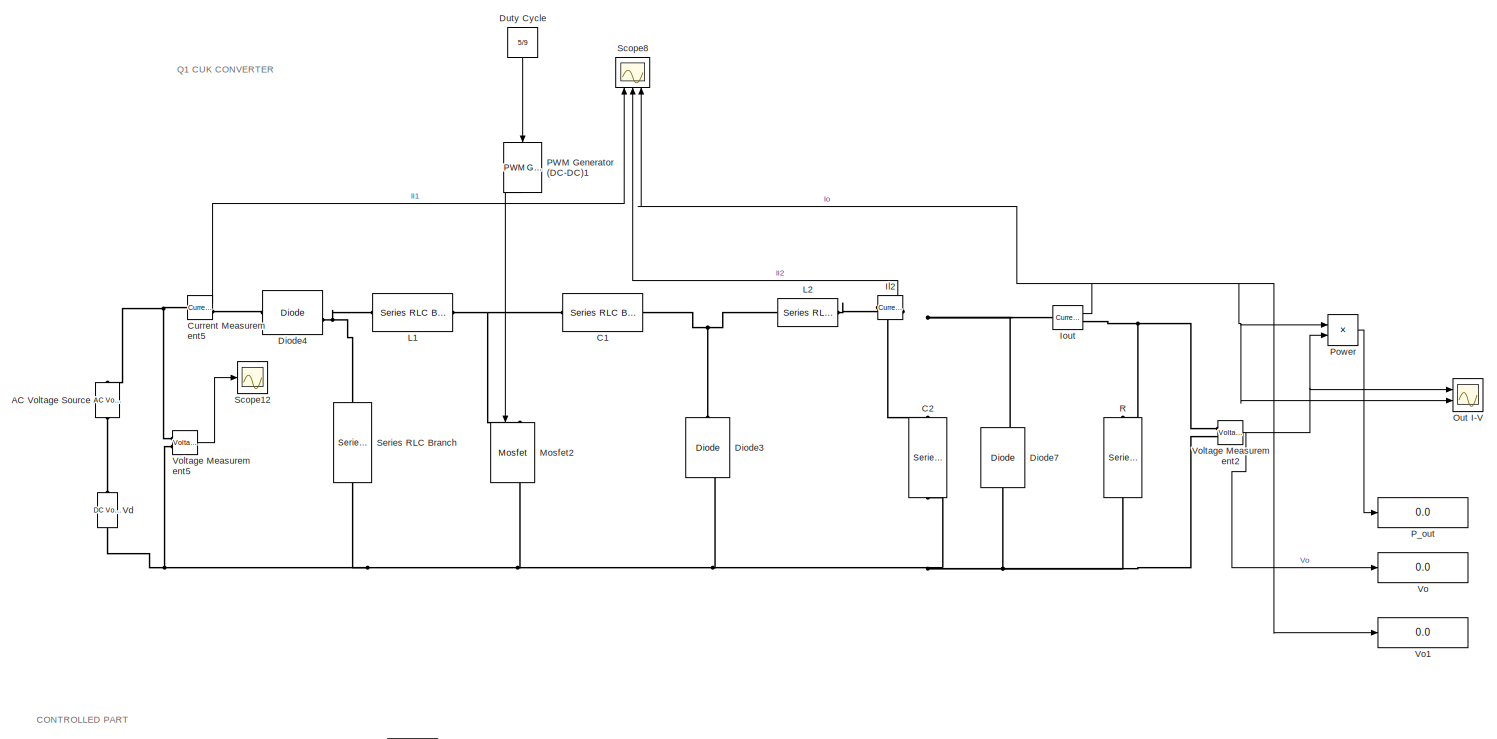
[diagram: root canvas - part 1/3, full width, top band]
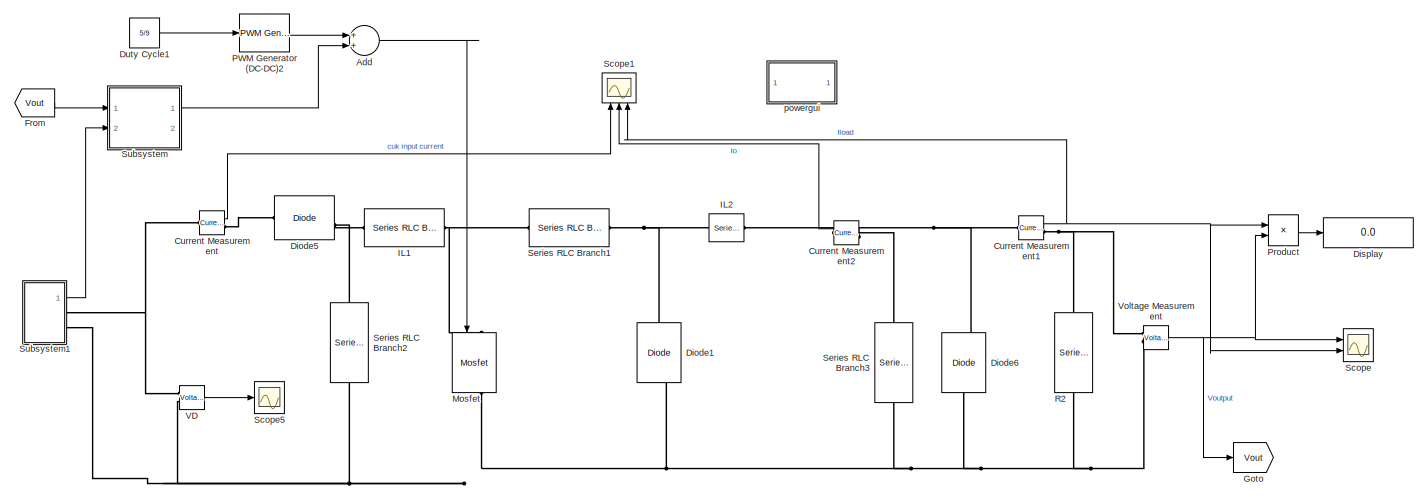
[diagram: root canvas - part 2/3, full width, middle band]
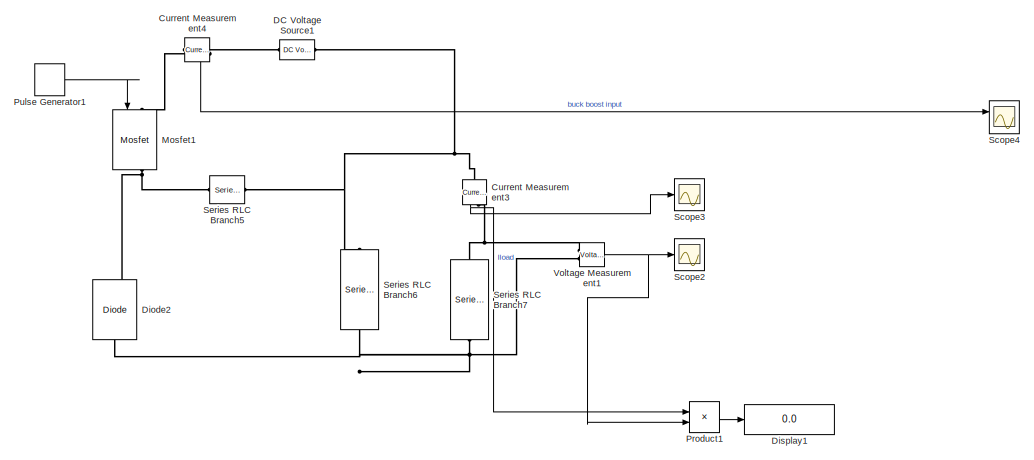
[diagram: root canvas - part 3/3, bottom right region]
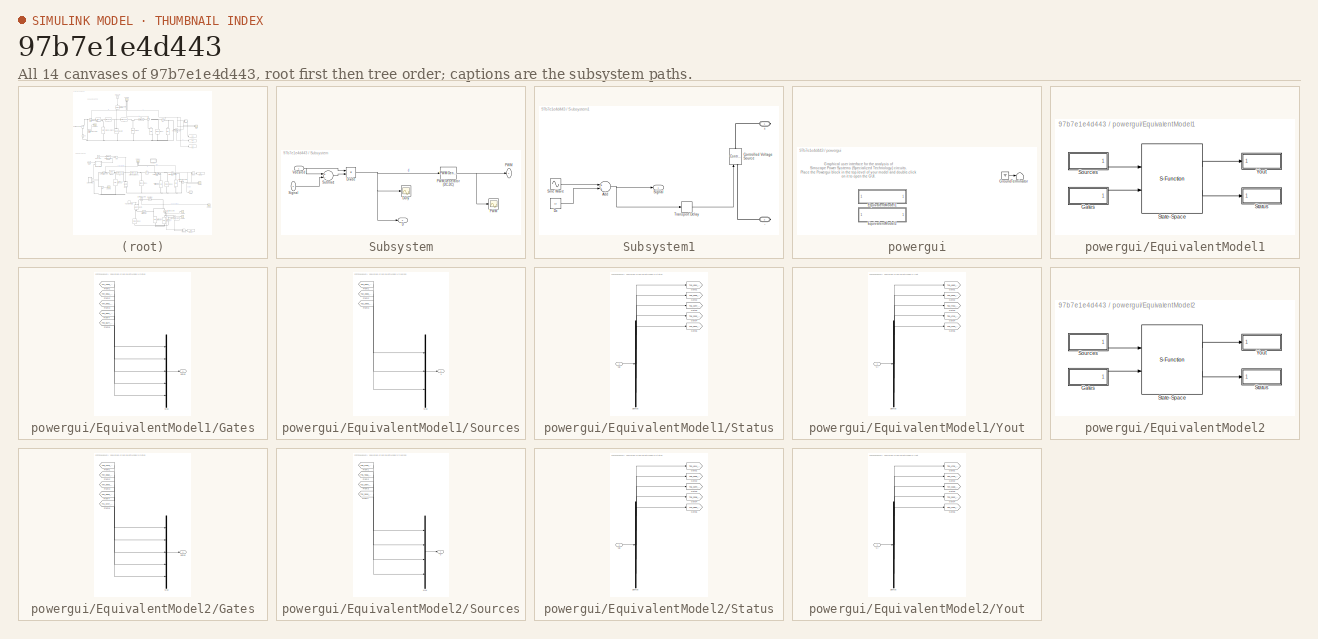
[diagram: thumbnail index - all 14 canvases of the model, root first then tree order]
MODEL slx_97b7e1e4d443
KIND model
CONFIG AbsTol = auto
CONFIG FixedStep = auto
CONFIG MaxStep = 1e-4
CONFIG MinStep = auto
CONFIG RelTol = 1e-3
CONFIG SampleTimeConstraint = Unconstrained
CONFIG Solver = VariableStepAuto
CONFIG SolverMode = Auto
CONFIG SolverName = VariableStepAuto
CONFIG StartTime = 0.0
CONFIG StopTime = 0.05
BLOCK [Reference] AC Voltage Source  REF=powerlib/Electrical
Sources/AC Voltage Source
  Ports = [0, 0, 0, 0, 0, 1, 1]
  SourceBlock = powerlib/Electrical\nSources/AC Voltage Source
  SourceType = AC Voltage Source
BLOCK [Sum] Add
  InputSameDT = off
  OutDataTypeStr = Inherit: Inherit via internal rule
  Ports = [2, 1]
  SaturateOnIntegerOverflow = off
BLOCK [Reference] C1  REF=powerlib/Elements/Series RLC Branch
  Ports = [0, 0, 0, 0, 0, 1, 1]
  SourceBlock = powerlib/Elements/Series RLC Branch
  SourceType = Series RLC Branch
BLOCK [Reference] C2  REF=powerlib/Elements/Series RLC Branch
  Ports = [0, 0, 0, 0, 0, 1, 1]
  SourceBlock = powerlib/Elements/Series RLC Branch
  SourceType = Series RLC Branch
BLOCK [Reference] Current Measurement  REF=powerlib/Measurements/Current Measurement
  Ports = [0, 1, 0, 0, 0, 1, 1]
  SourceBlock = powerlib/Measurements/Current Measurement
  SourceType = Current Measurement
  UserDataPersistent = on
BLOCK [Reference] Current Measurement1  REF=powerlib/Measurements/Current Measurement
  Ports = [0, 1, 0, 0, 0, 1, 1]
  SourceBlock = powerlib/Measurements/Current Measurement
  SourceType = Current Measurement
  UserDataPersistent = on
BLOCK [Reference] Current Measurement2  REF=powerlib/Measurements/Current Measurement
  Ports = [0, 1, 0, 0, 0, 1, 1]
  SourceBlock = powerlib/Measurements/Current Measurement
  SourceType = Current Measurement
  UserDataPersistent = on
BLOCK [Reference] Current Measurement3  REF=powerlib/Measurements/Current Measurement
  Commented = on
  Ports = [0, 1, 0, 0, 0, 1, 1]
  SourceBlock = powerlib/Measurements/Current Measurement
  SourceType = Current Measurement
  UserDataPersistent = on
BLOCK [Reference] Current Measurement4  REF=powerlib/Measurements/Current Measurement
  Commented = on
  Ports = [0, 1, 0, 0, 0, 1, 1]
  SourceBlock = powerlib/Measurements/Current Measurement
  SourceType = Current Measurement
  UserDataPersistent = on
BLOCK [Reference] Current Measurement5  REF=powerlib/Measurements/Current Measurement
  Ports = [0, 1, 0, 0, 0, 1, 1]
  SourceBlock = powerlib/Measurements/Current Measurement
  SourceType = Current Measurement
  UserDataPersistent = on
BLOCK [Reference] DC Voltage Source1  REF=powerlib/Electrical
Sources/DC Voltage Source
  Commented = on
  Ports = [0, 0, 0, 0, 0, 1, 1]
  SourceBlock = powerlib/Electrical\nSources/DC Voltage Source
  SourceType = DC Voltage Source
BLOCK [Reference] Diode1  REF=powerlib/Power
Electronics/Diode
  Ports = [0, 1, 0, 0, 0, 1, 1]
  SourceBlock = powerlib/Power\nElectronics/Diode
  SourceType = Diode
BLOCK [Reference] Diode2  REF=powerlib/Power
Electronics/Diode
  Commented = on
  Ports = [0, 1, 0, 0, 0, 1, 1]
  SourceBlock = powerlib/Power\nElectronics/Diode
  SourceType = Diode
BLOCK [Reference] Diode3  REF=powerlib/Power
Electronics/Diode
  Ports = [0, 1, 0, 0, 0, 1, 1]
  SourceBlock = powerlib/Power\nElectronics/Diode
  SourceType = Diode
BLOCK [Reference] Diode4  REF=powerlib/Power
Electronics/Diode
  Ports = [0, 1, 0, 0, 0, 1, 1]
  SourceBlock = powerlib/Power\nElectronics/Diode
  SourceType = Diode
BLOCK [Reference] Diode5  REF=powerlib/Power
Electronics/Diode
  Ports = [0, 1, 0, 0, 0, 1, 1]
  SourceBlock = powerlib/Power\nElectronics/Diode
  SourceType = Diode
BLOCK [Reference] Diode6  REF=powerlib/Power
Electronics/Diode
  Ports = [0, 1, 0, 0, 0, 1, 1]
  SourceBlock = powerlib/Power\nElectronics/Diode
  SourceType = Diode
BLOCK [Reference] Diode7  REF=powerlib/Power
Electronics/Diode
  Ports = [0, 1, 0, 0, 0, 1, 1]
  SourceBlock = powerlib/Power\nElectronics/Diode
  SourceType = Diode
BLOCK [Display] Display
  Decimation = 1
  Ports = [1]
BLOCK [Display] Display1
  Commented = on
  Decimation = 1
  Ports = [1]
BLOCK [Constant] Duty Cycle
  Value = 5/9
BLOCK [Constant] Duty Cycle1
  Value = 5/9
BLOCK [From] From
  GotoTag = Vout
BLOCK [Goto] Goto
  GotoTag = Vout
BLOCK [Reference] IL1  REF=powerlib/Elements/Series RLC Branch
  Ports = [0, 0, 0, 0, 0, 1, 1]
  SourceBlock = powerlib/Elements/Series RLC Branch
  SourceType = Series RLC Branch
BLOCK [Reference] IL2  REF=powerlib/Elements/Series RLC Branch
  Ports = [0, 0, 0, 0, 0, 1, 1]
  SourceBlock = powerlib/Elements/Series RLC Branch
  SourceType = Series RLC Branch
BLOCK [Reference] Il2  REF=powerlib/Measurements/Current Measurement
  Ports = [0, 1, 0, 0, 0, 1, 1]
  SourceBlock = powerlib/Measurements/Current Measurement
  SourceType = Current Measurement
  UserDataPersistent = on
BLOCK [Reference] Iout  REF=powerlib/Measurements/Current Measurement
  Ports = [0, 1, 0, 0, 0, 1, 1]
  SourceBlock = powerlib/Measurements/Current Measurement
  SourceType = Current Measurement
  UserDataPersistent = on
BLOCK [Reference] L1  REF=powerlib/Elements/Series RLC Branch
  Ports = [0, 0, 0, 0, 0, 1, 1]
  SourceBlock = powerlib/Elements/Series RLC Branch
  SourceType = Series RLC Branch
BLOCK [Reference] L2  REF=powerlib/Elements/Series RLC Branch
  Ports = [0, 0, 0, 0, 0, 1, 1]
  SourceBlock = powerlib/Elements/Series RLC Branch
  SourceType = Series RLC Branch
BLOCK [Reference] Mosfet  REF=powerlib/Power
Electronics/Mosfet
  Ports = [1, 1, 0, 0, 0, 1, 1]
  SourceBlock = powerlib/Power\nElectronics/Mosfet
  SourceType = Mosfet
BLOCK [Reference] Mosfet1  REF=powerlib/Power
Electronics/Mosfet
  Commented = on
  Ports = [1, 1, 0, 0, 0, 1, 1]
  SourceBlock = powerlib/Power\nElectronics/Mosfet
  SourceType = Mosfet
BLOCK [Reference] Mosfet2  REF=powerlib/Power
Electronics/Mosfet
  Ports = [1, 1, 0, 0, 0, 1, 1]
  SourceBlock = powerlib/Power\nElectronics/Mosfet
  SourceType = Mosfet
BLOCK [Scope] Out I-V
  NumInputPorts = 2
  Ports = [2]
  ScopeSpecificationString = Simulink.scopes.TimeScopeBlockCfg('CurrentConfiguration', extmgr.ConfigurationSet(extmgr.Configuration('Core','General UI',true,'FigureColor',[1 1 1]),extmgr.Configuration('Core','Source UI',true),extmgr.Configuration('Sources','WiredSimulink',true,'DataLoggingVariableName','ScopeData11'),extmgr.Configuration('Visuals','Time Domain',true,'SerializedDisplays',{struct('MinYLimReal','-16.88543','MaxY...<+2687ch>
BLOCK [Reference] PWM Generator (DC-DC)1  REF=powerlib_meascontrol/Pulse & Signal
Generators/PWM Generator
(DC-DC)
  Ports = [1, 1]
  SourceBlock = powerlib_meascontrol/Pulse & Signal\nGenerators/PWM Generator\n(DC-DC)
  SourceType = PWM Generator (DC-DC)
BLOCK [Reference] PWM Generator (DC-DC)2  REF=powerlib_meascontrol/Pulse & Signal
Generators/PWM Generator
(DC-DC)
  Ports = [1, 1]
  SourceBlock = powerlib_meascontrol/Pulse & Signal\nGenerators/PWM Generator\n(DC-DC)
  SourceType = PWM Generator (DC-DC)
BLOCK [Display] P_out
  Decimation = 1
  Ports = [1]
BLOCK [Product] Power
  InputSameDT = off
  OutDataTypeStr = Inherit: Inherit via internal rule
  Ports = [2, 1]
  RndMeth = Floor
  SaturateOnIntegerOverflow = off
BLOCK [Product] Product
  InputSameDT = off
  OutDataTypeStr = Inherit: Inherit via internal rule
  Ports = [2, 1]
  RndMeth = Floor
  SaturateOnIntegerOverflow = off
BLOCK [Product] Product1
  Commented = on
  InputSameDT = off
  OutDataTypeStr = Inherit: Inherit via internal rule
  Ports = [2, 1]
  RndMeth = Floor
  SaturateOnIntegerOverflow = off
BLOCK [DiscretePulseGenerator] Pulse Generator1
  Commented = on
  Period = 1/(150e3)
  Ports = [0, 1]
  PulseType = Time based
  PulseWidth = 5/9*100
BLOCK [Reference] R  REF=powerlib/Elements/Series RLC Branch
  Ports = [0, 0, 0, 0, 0, 1, 1]
  SourceBlock = powerlib/Elements/Series RLC Branch
  SourceType = Series RLC Branch
BLOCK [Reference] R2  REF=powerlib/Elements/Series RLC Branch
  Ports = [0, 0, 0, 0, 0, 1, 1]
  SourceBlock = powerlib/Elements/Series RLC Branch
  SourceType = Series RLC Branch
BLOCK [Scope] Scope
  NumInputPorts = 2
  Ports = [2]
  ScopeSpecificationString = Simulink.scopes.TimeScopeBlockCfg('CurrentConfiguration', extmgr.ConfigurationSet(extmgr.Configuration('Core','General UI',true,'FigureColor',[1 1 1]),extmgr.Configuration('Core','Source UI',true),extmgr.Configuration('Sources','WiredSimulink',true),extmgr.Configuration('Visuals','Time Domain',true,'SerializedDisplays',{struct('MinYLimReal','-20.83525','MaxYLimReal','30.09281','YLabelReal','','Min...<+2313ch>
BLOCK [Scope] Scope1
  NumInputPorts = 3
  Ports = [3]
  ScopeSpecificationString = Simulink.scopes.TimeScopeBlockCfg('CurrentConfiguration', extmgr.ConfigurationSet(extmgr.Configuration('Core','General UI',true,'FigureColor',[1 1 1]),extmgr.Configuration('Core','Source UI',true),extmgr.Configuration('Sources','WiredSimulink',true,'DataLoggingVariableName','ScopeData1'),extmgr.Configuration('Visuals','Time Domain',true,'SerializedDisplays',{struct('MinYLimReal','1.38229','MaxYLim...<+3197ch>
BLOCK [Scope] Scope12
  NumInputPorts = 1
  Ports = [1]
  ScopeSpecificationString = Simulink.scopes.TimeScopeBlockCfg('CurrentConfiguration', extmgr.ConfigurationSet(extmgr.Configuration('Core','General UI',true),extmgr.Configuration('Core','Source UI',true),extmgr.Configuration('Sources','WiredSimulink',true,'DataLoggingVariableName','ScopeData9'),extmgr.Configuration('Visuals','Time Domain',true,'SerializedDisplays',{struct('MinYLimReal','9.8673','MaxYLimReal','14.09321','YLabe...<+1422ch>
BLOCK [Scope] Scope2
  Commented = on
  NumInputPorts = 1
  Ports = [1]
  ScopeSpecificationString = Simulink.scopes.TimeScopeBlockCfg('CurrentConfiguration', extmgr.ConfigurationSet(extmgr.Configuration('Core','General UI',true),extmgr.Configuration('Core','Source UI',true),extmgr.Configuration('Sources','WiredSimulink',true,'DataLoggingVariableName','ScopeData2'),extmgr.Configuration('Visuals','Time Domain',true,'SerializedDisplays',{struct('MinYLimReal','13.4697','MaxYLimReal','14.1803','YLabe...<+1422ch>
BLOCK [Scope] Scope3
  Commented = on
  NumInputPorts = 1
  Ports = [1]
  ScopeSpecificationString = Simulink.scopes.TimeScopeBlockCfg('CurrentConfiguration', extmgr.ConfigurationSet(extmgr.Configuration('Core','General UI',true),extmgr.Configuration('Core','Source UI',true),extmgr.Configuration('Sources','WiredSimulink',true,'DataLoggingVariableName','ScopeData3'),extmgr.Configuration('Visuals','Time Domain',true,'SerializedDisplays',{struct('MinYLimReal','4.39076','MaxYLimReal','4.75562','YLabe...<+2073ch>
BLOCK [Scope] Scope4
  Commented = on
  NumInputPorts = 2
  Ports = [2]
  ScopeSpecificationString = Simulink.scopes.TimeScopeBlockCfg('CurrentConfiguration', extmgr.ConfigurationSet(extmgr.Configuration('Core','General UI',true,'FigureColor',[1 1 1]),extmgr.Configuration('Core','Source UI',true),extmgr.Configuration('Sources','WiredSimulink',true,'DataLoggingVariableName','ScopeData4'),extmgr.Configuration('Visuals','Time Domain',true,'SerializedDisplays',{struct('MinYLimReal','-1.42461','MaxYLi...<+2316ch>
BLOCK [Scope] Scope5
  NumInputPorts = 1
  Ports = [1]
  ScopeSpecificationString = Simulink.scopes.TimeScopeBlockCfg('CurrentConfiguration', extmgr.ConfigurationSet(extmgr.Configuration('Core','General UI',true),extmgr.Configuration('Core','Source UI',true),extmgr.Configuration('Sources','WiredSimulink',true,'DataLoggingVariableName','ScopeData5'),extmgr.Configuration('Visuals','Time Domain',true,'SerializedDisplays',{struct('MinYLimReal','9.8673','MaxYLimReal','14.09321','YLabe...<+1404ch>
BLOCK [Scope] Scope8
  NumInputPorts = 3
  Ports = [3]
  ScopeSpecificationString = Simulink.scopes.TimeScopeBlockCfg('CurrentConfiguration', extmgr.ConfigurationSet(extmgr.Configuration('Core','General UI',true,'FigureColor',[1 1 1]),extmgr.Configuration('Core','Source UI',true),extmgr.Configuration('Sources','WiredSimulink',true,'DataLoggingVariableName','ScopeData12'),extmgr.Configuration('Visuals','Time Domain',true,'SerializedDisplays',{struct('MinYLimReal','-0.28734','MaxYL...<+3176ch>
BLOCK [Reference] Series RLC Branch  REF=powerlib/Elements/Series RLC Branch
  Ports = [0, 0, 0, 0, 0, 1, 1]
  SourceBlock = powerlib/Elements/Series RLC Branch
  SourceType = Series RLC Branch
BLOCK [Reference] Series RLC Branch1  REF=powerlib/Elements/Series RLC Branch
  Ports = [0, 0, 0, 0, 0, 1, 1]
  SourceBlock = powerlib/Elements/Series RLC Branch
  SourceType = Series RLC Branch
BLOCK [Reference] Series RLC Branch2  REF=powerlib/Elements/Series RLC Branch
  Ports = [0, 0, 0, 0, 0, 1, 1]
  SourceBlock = powerlib/Elements/Series RLC Branch
  SourceType = Series RLC Branch
BLOCK [Reference] Series RLC Branch3  REF=powerlib/Elements/Series RLC Branch
  Ports = [0, 0, 0, 0, 0, 1, 1]
  SourceBlock = powerlib/Elements/Series RLC Branch
  SourceType = Series RLC Branch
BLOCK [Reference] Series RLC Branch5  REF=powerlib/Elements/Series RLC Branch
  Commented = on
  Ports = [0, 0, 0, 0, 0, 1, 1]
  SourceBlock = powerlib/Elements/Series RLC Branch
  SourceType = Series RLC Branch
BLOCK [Reference] Series RLC Branch6  REF=powerlib/Elements/Series RLC Branch
  Commented = on
  Ports = [0, 0, 0, 0, 0, 1, 1]
  SourceBlock = powerlib/Elements/Series RLC Branch
  SourceType = Series RLC Branch
BLOCK [Reference] Series RLC Branch7  REF=powerlib/Elements/Series RLC Branch
  Commented = on
  Ports = [0, 0, 0, 0, 0, 1, 1]
  SourceBlock = powerlib/Elements/Series RLC Branch
  SourceType = Series RLC Branch
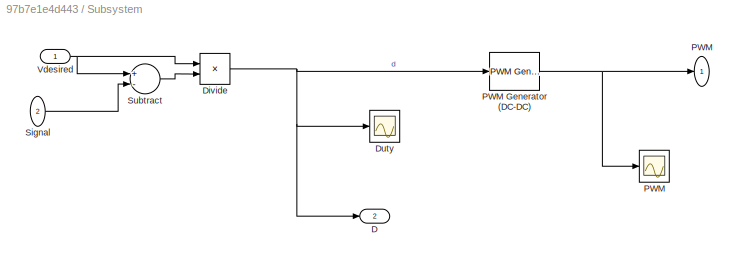
BLOCK [SubSystem] Subsystem
  Ports = [2, 2]
  RequestExecContextInheritance = off
  Variant = off
BLOCK [Outport] Subsystem/D
  IconDisplay = Port number
  Port = 2
BLOCK [Product] Subsystem/Divide
  InputSameDT = off
  Inputs = */
  OutDataTypeStr = Inherit: Inherit via internal rule
  Ports = [2, 1]
  RndMeth = Floor
  SaturateOnIntegerOverflow = off
BLOCK [Scope] Subsystem/Duty
  NumInputPorts = 1
  Ports = [1]
  ScopeSpecificationString = Simulink.scopes.TimeScopeBlockCfg('CurrentConfiguration', extmgr.ConfigurationSet(extmgr.Configuration('Core','General UI',true),extmgr.Configuration('Core','Source UI',true),extmgr.Configuration('Sources','WiredSimulink',true,'DataLoggingVariableName','ScopeData6'),extmgr.Configuration('Visuals','Time Domain',true,'SerializedDisplays',{struct('MinYLimReal','-0.99349','MaxYLimReal','-0.9107','YLab...<+1430ch>
BLOCK [Outport] Subsystem/PWM
  IconDisplay = Port number
BLOCK [Scope] Subsystem/PWM 
  NumInputPorts = 1
  Ports = [1]
  ScopeSpecificationString = Simulink.scopes.TimeScopeBlockCfg('CurrentConfiguration', extmgr.ConfigurationSet(extmgr.Configuration('Core','General UI',true),extmgr.Configuration('Core','Source UI',true),extmgr.Configuration('Sources','WiredSimulink',true,'DataLoggingVariableName','ScopeData2'),extmgr.Configuration('Visuals','Time Domain',true,'SerializedDisplays',{struct('MinYLimReal','0.5069','MaxYLimReal','0.61034','YLabel...<+1444ch>
BLOCK [Reference] Subsystem/PWM Generator (DC-DC)  REF=powerlib_meascontrol/Pulse & Signal
Generators/PWM Generator
(DC-DC)
  Ports = [1, 1]
  SourceBlock = powerlib_meascontrol/Pulse & Signal\nGenerators/PWM Generator\n(DC-DC)
  SourceType = PWM Generator (DC-DC)
BLOCK [Inport] Subsystem/Signal
  IconDisplay = Port number
  Port = 2
BLOCK [Sum] Subsystem/Subtract 
  InputSameDT = off
  Inputs = +-
  OutDataTypeStr = Inherit: Inherit via internal rule
  Ports = [2, 1]
  SaturateOnIntegerOverflow = off
BLOCK [Inport] Subsystem/Vdesired
  IconDisplay = Port number
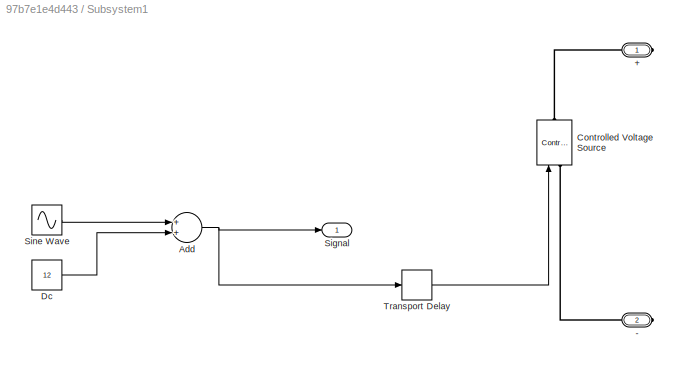
BLOCK [SubSystem] Subsystem1
  Ports = [0, 1, 0, 0, 0, 0, 2]
  RequestExecContextInheritance = off
  Variant = off
BLOCK [PMIOPort] Subsystem1/+
  Port = 1
  Side = Right
BLOCK [PMIOPort] Subsystem1/-
  Port = 2
  Side = Right
BLOCK [Sum] Subsystem1/Add
  InputSameDT = off
  OutDataTypeStr = Inherit: Inherit via internal rule
  Ports = [2, 1]
  SaturateOnIntegerOverflow = off
BLOCK [Reference] Subsystem1/Controlled Voltage Source  REF=powerlib/Electrical
Sources/Controlled Voltage Source
  Ports = [1, 0, 0, 0, 0, 1, 1]
  SourceBlock = powerlib/Electrical\nSources/Controlled Voltage Source
  SourceType = Controlled Voltage Source
BLOCK [Constant] Subsystem1/Dc
  Value = 12
BLOCK [Outport] Subsystem1/Signal
  IconDisplay = Port number
BLOCK [Sin] Subsystem1/Sine Wave
  Amplitude = 2
  Frequency = 600*pi
  Ports = [0, 1]
  SampleTime = 0
BLOCK [TransportDelay] Subsystem1/Transport Delay
  DelayTime = 2e-4
  Ports = [1, 1]
BLOCK [Reference] VD  REF=powerlib/Measurements/Voltage Measurement
  Ports = [0, 1, 0, 0, 0, 2]
  SourceBlock = powerlib/Measurements/Voltage Measurement
  SourceType = Voltage Measurement
  UserDataPersistent = on
BLOCK [Reference] Vd  REF=powerlib/Electrical
Sources/DC Voltage Source
  Ports = [0, 0, 0, 0, 0, 1, 1]
  SourceBlock = powerlib/Electrical\nSources/DC Voltage Source
  SourceType = DC Voltage Source
BLOCK [Display] Vo
  Decimation = 1
  Ports = [1]
BLOCK [Display] Vo1
  Decimation = 1
  Ports = [1]
BLOCK [Reference] Voltage Measurement  REF=powerlib/Measurements/Voltage Measurement
  Ports = [0, 1, 0, 0, 0, 2]
  SourceBlock = powerlib/Measurements/Voltage Measurement
  SourceType = Voltage Measurement
  UserDataPersistent = on
BLOCK [Reference] Voltage Measurement1  REF=powerlib/Measurements/Voltage Measurement
  Commented = on
  Ports = [0, 1, 0, 0, 0, 2]
  SourceBlock = powerlib/Measurements/Voltage Measurement
  SourceType = Voltage Measurement
  UserDataPersistent = on
BLOCK [Reference] Voltage Measurement2  REF=powerlib/Measurements/Voltage Measurement
  Ports = [0, 1, 0, 0, 0, 2]
  SourceBlock = powerlib/Measurements/Voltage Measurement
  SourceType = Voltage Measurement
  UserDataPersistent = on
BLOCK [Reference] Voltage Measurement5  REF=powerlib/Measurements/Voltage Measurement
  Ports = [0, 1, 0, 0, 0, 2]
  SourceBlock = powerlib/Measurements/Voltage Measurement
  SourceType = Voltage Measurement
  UserDataPersistent = on
BLOCK [SubSystem] powergui
  AncestorBlock = powerlib/powergui
  DialogController = POWERSYS.PowerSysDialog
  InitFcn = powergui( 'InitFcn_Callback' , gcb , 0 , [ ] );
  OpenFcn = sps_rtmsupport('OpenFcn',gcbh)
  Ports = []
  PreSaveFcn = powergui( 'PreSaveFcn_Callback' , gcb , [ ] , [ ] );
  Priority = 1
  RequestExecContextInheritance = off
  Variant = off
BLOCK [SubSystem] powergui/EquivalentModel1
  Ports = []
  RequestExecContextInheritance = off
  Variant = off
BLOCK [SubSystem] powergui/EquivalentModel1/Gates
  Ports = [0, 1]
  RequestExecContextInheritance = off
  Variant = off
BLOCK [From] powergui/EquivalentModel1/Gates/From1
  GotoTag = T47_4329_3698698910814
  TagVisibility = global
BLOCK [From] powergui/EquivalentModel1/Gates/From2
  GotoTag = T34_3061_1706458673654
  TagVisibility = global
BLOCK [From] powergui/EquivalentModel1/Gates/From3
  GotoTag = T34_3062_1706519013654
  TagVisibility = global
BLOCK [From] powergui/EquivalentModel1/Gates/From4
  GotoTag = T34_3057_1707040113654
  TagVisibility = global
BLOCK [From] powergui/EquivalentModel1/Gates/From5
  GotoTag = T40_3677_2581308517942
  TagVisibility = global
BLOCK [Mux] powergui/EquivalentModel1/Gates/Mux
  DisplayOption = bar
  Inputs = [1 1 1 1 1]
  Ports = [5, 1]
BLOCK [Outport] powergui/EquivalentModel1/Gates/gates
  IconDisplay = Port number
BLOCK [SubSystem] powergui/EquivalentModel1/Sources
  Ports = [0, 1]
  RequestExecContextInheritance = off
  Variant = off
BLOCK [From] powergui/EquivalentModel1/Sources/From1
  GotoTag = T64_6051_6956320666109
  TagVisibility = global
BLOCK [From] powergui/EquivalentModel1/Sources/From2
  GotoTag = T32_2808_1064889455766
  TagVisibility = global
BLOCK [From] powergui/EquivalentModel1/Sources/From3
  GotoTag = T32_2809_1065478437903
  TagVisibility = global
BLOCK [Mux] powergui/EquivalentModel1/Sources/Mux
  DisplayOption = bar
  Inputs = [1 1 1]
  Ports = [3, 1]
BLOCK [Outport] powergui/EquivalentModel1/Sources/u
  IconDisplay = Port number
BLOCK [S-Function] powergui/EquivalentModel1/State-Space
  EnableBusSupport = off
  FunctionName = sfun_spid_contc
  Parameters = S.Mg, [S.nb.x S.nb.u S.nb.y S.nb.s], S.x0, S.MgColNames, S.SwitchVf, S.SwitchType, S.SwitchGateInitialValue, S.SwitchTolerance,S.SaveMatrices,S.BufferSize
  Ports = [2, 2]
  SFunctionDeploymentMode = off
BLOCK [SubSystem] powergui/EquivalentModel1/Status
  Ports = [1]
  RequestExecContextInheritance = off
  Variant = off
BLOCK [Demux] powergui/EquivalentModel1/Status/Demux
  DisplayOption = bar
  Outputs = [2 2 2 2 2]
  Ports = [1, 5]
BLOCK [Goto] powergui/EquivalentModel1/Status/Goto1
  GotoTag = T49_4564_4305787090221
  TagVisibility = global
BLOCK [Goto] powergui/EquivalentModel1/Status/Goto2
  GotoTag = T36_3296_2193091115135
  TagVisibility = global
BLOCK [Goto] powergui/EquivalentModel1/Status/Goto3
  GotoTag = T36_3297_2192745277929
  TagVisibility = global
BLOCK [Goto] powergui/EquivalentModel1/Status/Goto4
  GotoTag = T36_3292_2195251552849
  TagVisibility = global
BLOCK [Goto] powergui/EquivalentModel1/Status/Goto5
  GotoTag = T42_3912_3109892010221
  TagVisibility = global
BLOCK [Inport] powergui/EquivalentModel1/Status/v&i
  IconDisplay = Port number
BLOCK [SubSystem] powergui/EquivalentModel1/Yout
  Ports = [1]
  RequestExecContextInheritance = off
  Variant = off
BLOCK [Demux] powergui/EquivalentModel1/Yout/Demux
  DisplayOption = bar
  Outputs = [1 1 1 1 1]
  Ports = [1, 5]
BLOCK [Goto] powergui/EquivalentModel1/Yout/Goto1
  GotoTag = T49_4683_4474323761173
  TagVisibility = global
BLOCK [Goto] powergui/EquivalentModel1/Yout/Goto2
  GotoTag = T32_2925_1634848418710
  TagVisibility = global
BLOCK [Goto] powergui/EquivalentModel1/Yout/Goto3
  GotoTag = T50_4750_4568249592167
  TagVisibility = global
BLOCK [Goto] powergui/EquivalentModel1/Yout/Goto4
  GotoTag = T50_4749_4569186554290
  TagVisibility = global
BLOCK [Goto] powergui/EquivalentModel1/Yout/Goto5
  GotoTag = T49_4700_4537125051531
  TagVisibility = global
BLOCK [Inport] powergui/EquivalentModel1/Yout/v,i
  IconDisplay = Port number
BLOCK [SubSystem] powergui/EquivalentModel2
  Ports = []
  RequestExecContextInheritance = off
  Variant = off
BLOCK [SubSystem] powergui/EquivalentModel2/Gates
  Ports = [0, 1]
  RequestExecContextInheritance = off
  Variant = off
BLOCK [From] powergui/EquivalentModel2/Gates/From1
  GotoTag = T48_4379_3837982568865
  TagVisibility = global
BLOCK [From] powergui/EquivalentModel2/Gates/From2
  GotoTag = T34_3060_1706480613654
  TagVisibility = global
BLOCK [From] powergui/EquivalentModel2/Gates/From3
  GotoTag = T34_3059_1706584833654
  TagVisibility = global
BLOCK [From] powergui/EquivalentModel2/Gates/From4
  GotoTag = T34_3063_1706661633654
  TagVisibility = global
BLOCK [From] powergui/EquivalentModel2/Gates/From5
  GotoTag = T41_3727_2658382082756
  TagVisibility = global
BLOCK [Mux] powergui/EquivalentModel2/Gates/Mux
  DisplayOption = bar
  Inputs = [1 1 1 1 1]
  Ports = [5, 1]
BLOCK [Outport] powergui/EquivalentModel2/Gates/gates
  IconDisplay = Port number
BLOCK [SubSystem] powergui/EquivalentModel2/Sources
  Ports = [0, 1]
  RequestExecContextInheritance = off
  Variant = off
BLOCK [From] powergui/EquivalentModel2/Sources/From1
  GotoTag = T30_2709_1288200906437
  TagVisibility = global
BLOCK [From] powergui/EquivalentModel2/Sources/From2
  GotoTag = T45_4066_3473095238283
  TagVisibility = global
BLOCK [From] powergui/EquivalentModel2/Sources/From3
  GotoTag = T32_2807_1064387896129
  TagVisibility = global
BLOCK [From] powergui/EquivalentModel2/Sources/From4
  GotoTag = T32_2810_1066154842540
  TagVisibility = global
BLOCK [Mux] powergui/EquivalentModel2/Sources/Mux
  DisplayOption = bar
  Inputs = [1 1 1 1]
  Ports = [4, 1]
BLOCK [Outport] powergui/EquivalentModel2/Sources/u
  IconDisplay = Port number
BLOCK [S-Function] powergui/EquivalentModel2/State-Space
  EnableBusSupport = off
  FunctionName = sfun_spid_contc
  Parameters = S.Mg, [S.nb.x S.nb.u S.nb.y S.nb.s], S.x0, S.MgColNames, S.SwitchVf, S.SwitchType, S.SwitchGateInitialValue, S.SwitchTolerance,S.SaveMatrices,S.BufferSize
  Ports = [2, 2]
  SFunctionDeploymentMode = off
BLOCK [SubSystem] powergui/EquivalentModel2/Status
  Ports = [1]
  RequestExecContextInheritance = off
  Variant = off
BLOCK [Demux] powergui/EquivalentModel2/Status/Demux
  DisplayOption = bar
  Outputs = [2 2 2 2 2]
  Ports = [1, 5]
BLOCK [Goto] powergui/EquivalentModel2/Status/Goto1
  GotoTag = T50_4614_4471141218486
  TagVisibility = global
BLOCK [Goto] powergui/EquivalentModel2/Status/Goto2
  GotoTag = T36_3295_2193514661230
  TagVisibility = global
BLOCK [Goto] powergui/EquivalentModel2/Status/Goto3
  GotoTag = T36_3294_2194015916214
  TagVisibility = global
BLOCK [Goto] powergui/EquivalentModel2/Status/Goto4
  GotoTag = T36_3298_2192477149611
  TagVisibility = global
BLOCK [Goto] powergui/EquivalentModel2/Status/Goto5
  GotoTag = T43_3962_3216961277254
  TagVisibility = global
BLOCK [Inport] powergui/EquivalentModel2/Status/v&i
  IconDisplay = Port number
BLOCK [SubSystem] powergui/EquivalentModel2/Yout
  Ports = [1]
  RequestExecContextInheritance = off
  Variant = off
BLOCK [Demux] powergui/EquivalentModel2/Yout/Demux
  DisplayOption = bar
  Outputs = [1 1 1 1 1]
  Ports = [1, 5]
BLOCK [Goto] powergui/EquivalentModel2/Yout/Goto1
  GotoTag = T50_4736_4505083443792
  TagVisibility = global
BLOCK [Goto] powergui/EquivalentModel2/Yout/Goto2
  GotoTag = T50_4733_4507053794322
  TagVisibility = global
BLOCK [Goto] powergui/EquivalentModel2/Yout/Goto3
  GotoTag = T34_3188_2066509576328
  TagVisibility = global
BLOCK [Goto] powergui/EquivalentModel2/Yout/Goto4
  GotoTag = T33_3002_1766650133201
  TagVisibility = global
BLOCK [Goto] powergui/EquivalentModel2/Yout/Goto5
  GotoTag = T50_4753_4566180632200
  TagVisibility = global
BLOCK [Inport] powergui/EquivalentModel2/Yout/v,i
  IconDisplay = Port number
BLOCK [Ground] powergui/Ground
BLOCK [Terminator] powergui/Terminator
ANNOTATION (root): CONTROLLED PART
ANNOTATION (root): Q1 CUK CONVERTER
ANNOTATION powergui: Graphical user interface for the analysis of Simscape Power Systems (Specialized Technology) circuits. Place the Powergui block in the top-level of your model and double-click on it to open the GUI.
LINE Add:1 -> Mosfet:1
NET Current Measurement1:1 -> Product:1, Scope1:3, Scope:2
LINE Current Measurement2:1 -> Scope1:2
NET Current Measurement3:1 -> Product1:1, Scope3:1
LINE Current Measurement4:1 -> Scope4:1
LINE Current Measurement5:1 -> Scope8:1
LINE Current Measurement:1 -> Scope1:1
LINE Duty Cycle1:1 -> PWM Generator (DC-DC)2:1
LINE Duty Cycle:1 -> PWM Generator (DC-DC)1:1
LINE From:1 -> Subsystem:1
LINE Il2:1 -> Scope8:2
NET Iout:1 -> Out I-V:2, Power:1, Scope8:3, Vo1:1
LINE PWM Generator (DC-DC)1:1 -> Mosfet2:1
LINE PWM Generator (DC-DC)2:1 -> Add:1
LINE Power:1 -> P_out:1
LINE Product1:1 -> Display1:1
LINE Product:1 -> Display:1
LINE Pulse Generator1:1 -> Mosfet1:1
NET Subsystem/Divide:1 -> Subsystem/D:1, Subsystem/Duty:1, Subsystem/PWM Generator (DC-DC):1
NET Subsystem/PWM Generator (DC-DC):1 -> Subsystem/PWM :1, Subsystem/PWM:1
LINE Subsystem/Signal:1 -> Subsystem/Subtract :2
LINE Subsystem/Subtract :1 -> Subsystem/Divide:2
NET Subsystem/Vdesired:1 -> Subsystem/Divide:1, Subsystem/Subtract :1
NET Subsystem1/Add:1 -> Subsystem1/Signal:1, Subsystem1/Transport Delay:1
LINE Subsystem1/Dc:1 -> Subsystem1/Add:2
LINE Subsystem1/Sine Wave:1 -> Subsystem1/Add:1
LINE Subsystem1/Transport Delay:1 -> Subsystem1/Controlled Voltage Source:1
LINE Subsystem1:1 -> Subsystem:2
LINE Subsystem:1 -> Add:2
LINE VD:1 -> Scope5:1
NET Voltage Measurement1:1 -> Product1:2, Scope2:1
NET Voltage Measurement2:1 -> Out I-V:1, Power:2, Vo:1
LINE Voltage Measurement5:1 -> Scope12:1
NET Voltage Measurement:1 -> Goto:1, Product:2, Scope:1
PLINE AC Voltage Source:LConn1 -- Vd:RConn1
PNET net1: AC Voltage Source:RConn1 -- Current Measurement5:LConn1 -- Voltage Measurement5:LConn1
PNET net2: C1:LConn1 -- L1:RConn1 -- Mosfet2:LConn1
PNET net3: C1:RConn1 -- Diode3:LConn1 -- L2:RConn1
PNET net4: C2:LConn1 -- Diode7:RConn1 -- Il2:LConn1 -- Iout:LConn1
PNET net5: C2:RConn1 -- Diode3:RConn1 -- Diode7:LConn1 -- Mosfet2:RConn1 -- R:LConn1 -- Series RLC Branch:RConn1 -- Vd:LConn1 -- Voltage Measurement2:LConn2 -- Voltage Measurement5:LConn2
PNET net6: Current Measurement1:LConn1 -- Current Measurement2:LConn1 -- Diode6:RConn1 -- Series RLC Branch3:LConn1
PNET net7: Current Measurement1:RConn1 -- R2:RConn1 -- Voltage Measurement:LConn1
PLINE Current Measurement2:RConn1 -- IL2:LConn1
PNET net8: Current Measurement3:LConn1 -- DC Voltage Source1:LConn1 -- Series RLC Branch5:RConn1 -- Series RLC Branch6:LConn1
PNET net9: Current Measurement3:RConn1 -- Series RLC Branch7:LConn1 -- Voltage Measurement1:LConn1
PLINE Current Measurement4:LConn1 -- DC Voltage Source1:RConn1
PLINE Current Measurement4:RConn1 -- Mosfet1:LConn1
PLINE Current Measurement5:RConn1 -- Diode4:LConn1
PNET net10: Current Measurement:LConn1 -- Subsystem1:RConn1 -- VD:LConn1
PLINE Current Measurement:RConn1 -- Diode5:LConn1
PNET net11: Diode1:LConn1 -- IL2:RConn1 -- Series RLC Branch1:RConn1
PNET net12: Diode1:RConn1 -- Diode6:LConn1 -- Mosfet:RConn1 -- R2:LConn1 -- Series RLC Branch2:RConn1 -- Series RLC Branch3:RConn1 -- Subsystem1:RConn2 -- VD:LConn2 -- Voltage Measurement:LConn2
PNET net13: Diode2:LConn1 -- Series RLC Branch6:RConn1 -- Series RLC Branch7:RConn1 -- Voltage Measurement1:LConn2
PNET net14: Diode2:RConn1 -- Mosfet1:RConn1 -- Series RLC Branch5:LConn1
PNET net15: Diode4:RConn1 -- L1:LConn1 -- Series RLC Branch:LConn1
PNET net16: Diode5:RConn1 -- IL1:LConn1 -- Series RLC Branch2:LConn1
PNET net17: IL1:RConn1 -- Mosfet:LConn1 -- Series RLC Branch1:LConn1
PLINE Il2:RConn1 -- L2:LConn1
PNET net18: Iout:RConn1 -- R:RConn1 -- Voltage Measurement2:LConn1
PLINE Subsystem1/+:RConn1 -- Subsystem1/Controlled Voltage Source:RConn1
PLINE Subsystem1/-:RConn1 -- Subsystem1/Controlled Voltage Source:LConn1
note: NET lines group one-source signal fan-out (src -> all destinations, sorted); 1:1 wires keep LINE; PNET lines group multi-terminal physical nets as a canonical sorted terminal list (undirected conserving connections); 2-terminal nets keep the pairwise PLINE form
